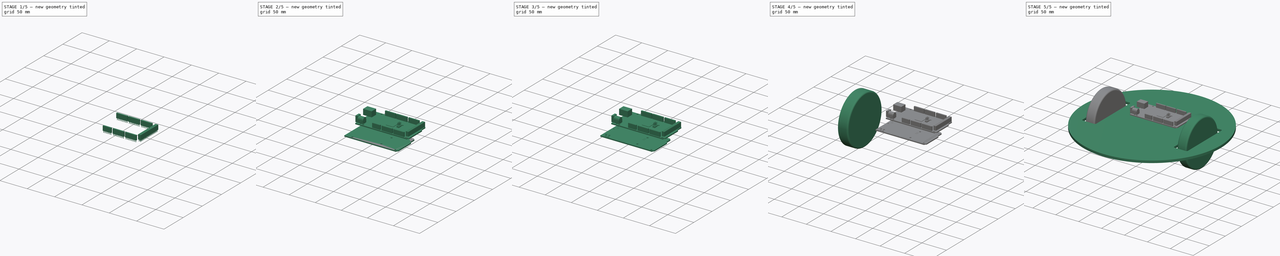
[diagram: build sequence overview — one tinted view per stage of 5, left to right]
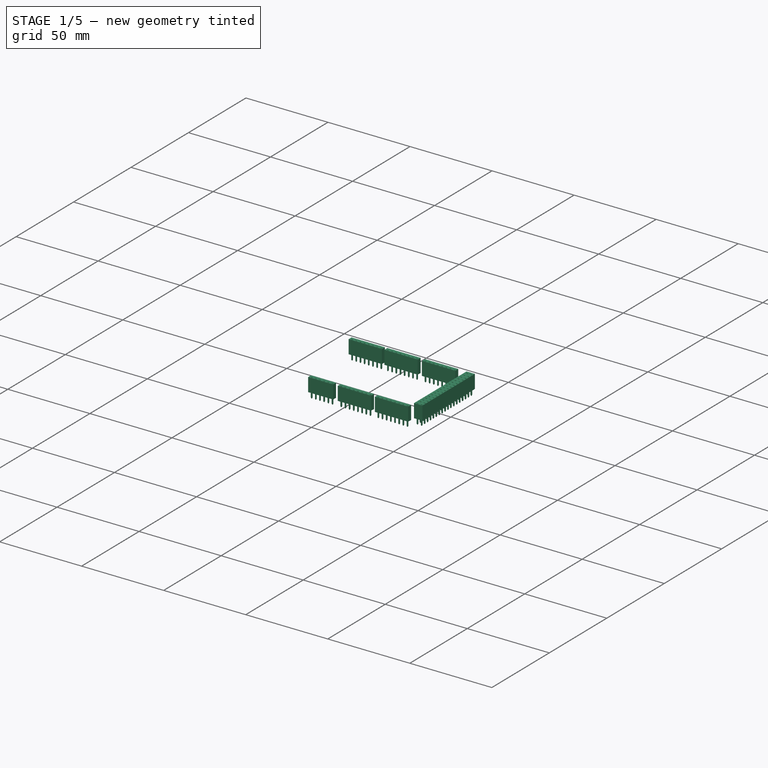
[diagram: stage 1 of 5 — iso view after this stage's code; geometry added in this stage tinted green]
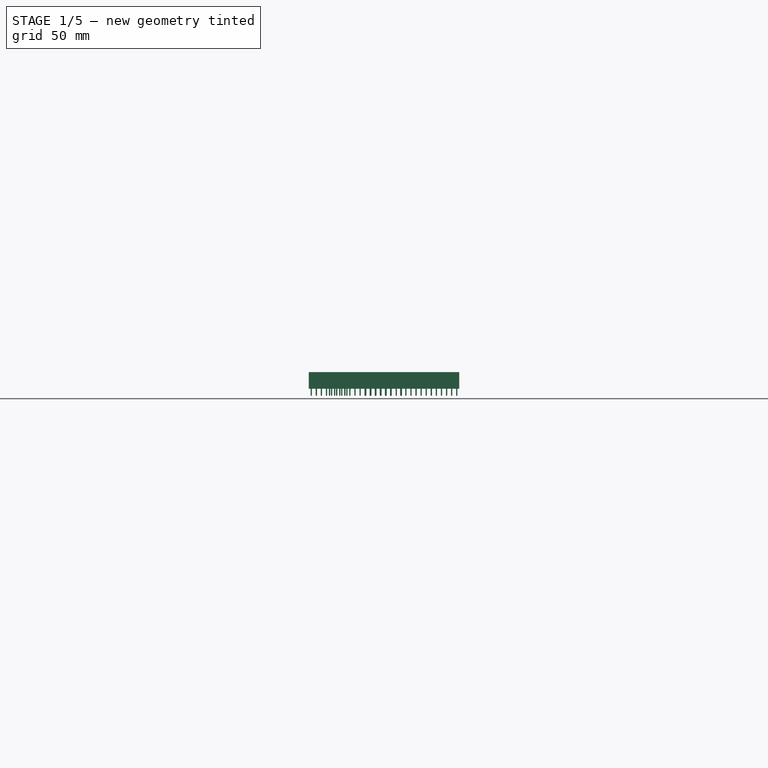
[diagram: stage 1 of 5 — front view after this stage's code; geometry added in this stage tinted green]
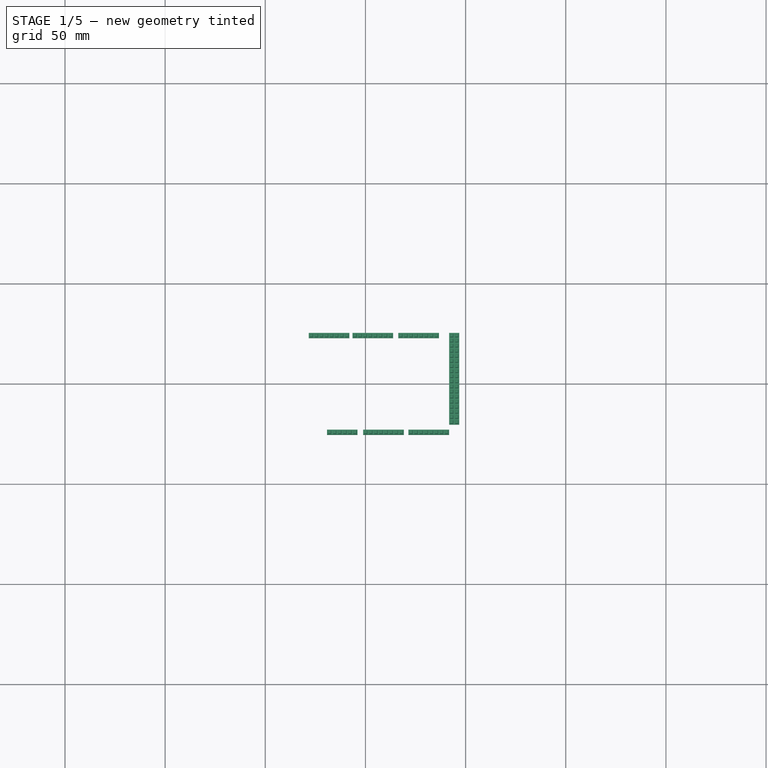
[diagram: stage 1 of 5 — top view after this stage's code; geometry added in this stage tinted green]
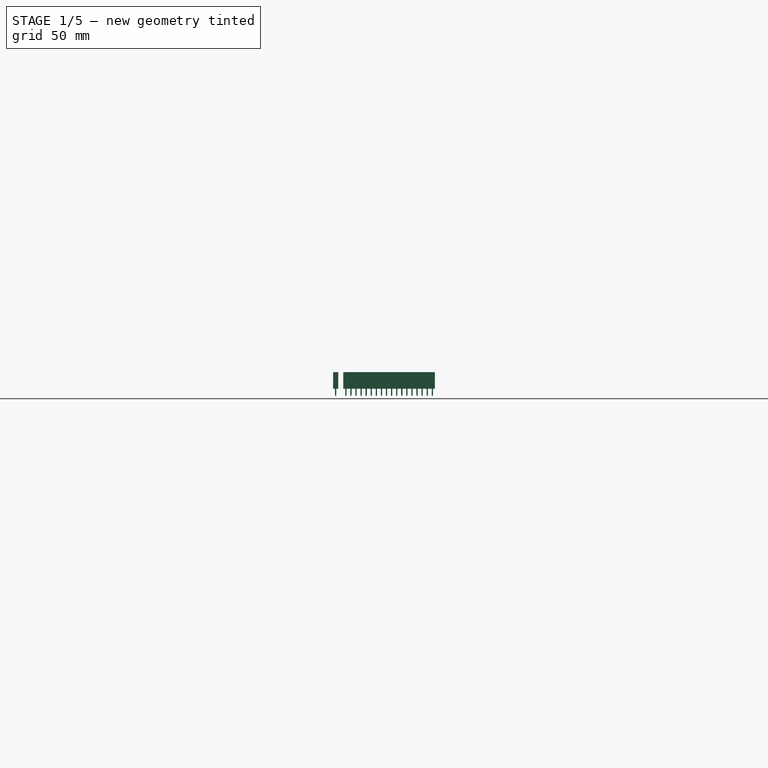
[diagram: stage 1 of 5 — right view after this stage's code; geometry added in this stage tinted green]
FCSTD DOCUMENT  (FreeCAD 0.15R4527 (Git))
Label: piero
License: All rights reserved
LicenseURL: http://en.wikipedia.org/wiki/All_rights_reserved
objects: Sketcher::SketchObject×17, PartDesign::Pocket×12, Part::Compound×10, App::DocumentObjectGroup×6, Part::Feature×6, PartDesign::Pad×5, PartDesign::Fillet×5, PartDesign::LinearPattern×1
note: 73 computed .brp shape members not serialized (recipe doc carries the construction recipe); baked Part::Feature solids carry a one-line shape summary decoded from their .brp

FEATURE [Part::Compound] Compound002  label="1x8-female-pin-header-1"
  Placement = pos=(0.136,-24.176,2) rot=(0,0,1;0rad)
FEATURE [Part::Compound] Compound003  label="1x8-female-pin-header-002"
  Placement = pos=(22.724,-24.176,2) rot=(0,0,1;0rad)
FEATURE [Part::Compound] Compound004  label="1x8-female-pin-header-003"
  Placement = pos=(-27.06,24.084,2) rot=(0,0,1;0rad)
FEATURE [Part::Compound] Compound005  label="1x8-female-pin-header-004"
  Placement = pos=(-5.216,24.084,2) rot=(0,0,1;0rad)
FEATURE [Part::Compound] Compound006  label="1x8-female-pin-header-005"
  Placement = pos=(17.644,24.084,2) rot=(0,0,1;0rad)
FEATURE [Part::Compound] Compound007  label="1x6-female-pin-header"
  Placement = pos=(-17.916,-24.176,2) rot=(0,0,1;0rad)
FEATURE [Part::Compound] Compound008  label="2x18-female-pin-header"
  Placement = pos=(45.584,-19.096,2) rot=(0,0,1;1.5708rad)
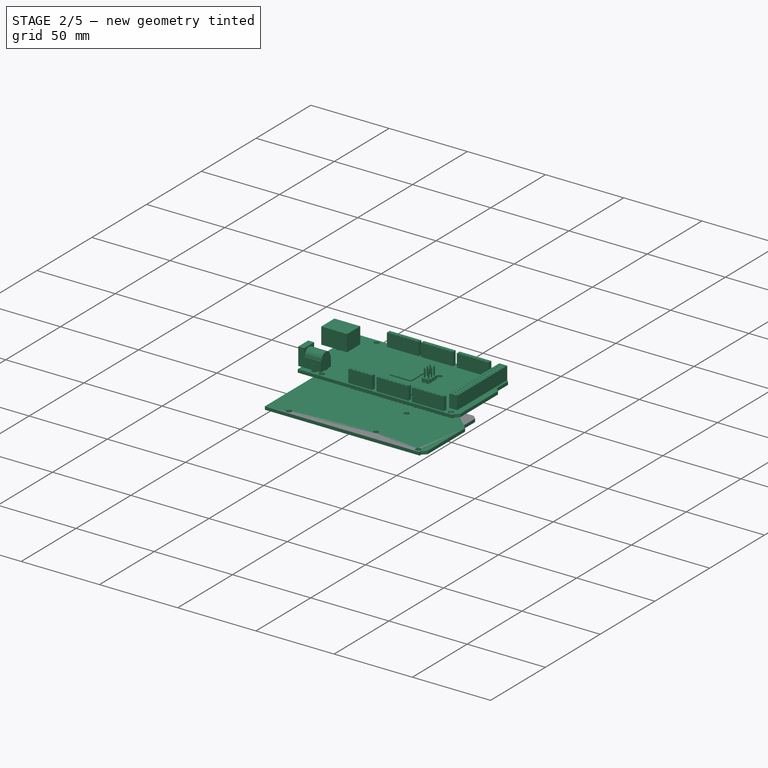
[diagram: stage 2 of 5 — iso view after this stage's code; geometry added in this stage tinted green]
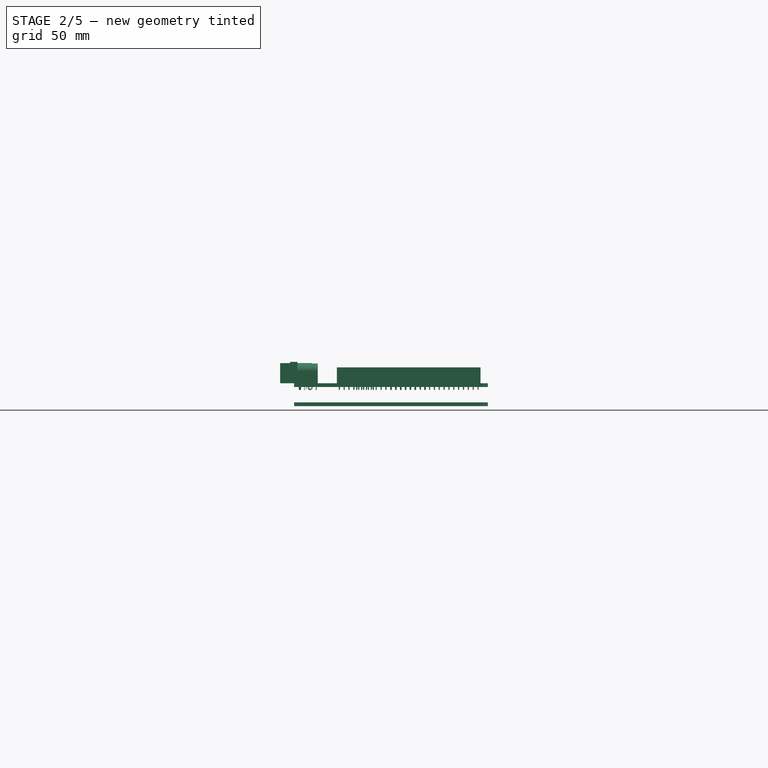
[diagram: stage 2 of 5 — front view after this stage's code; geometry added in this stage tinted green]
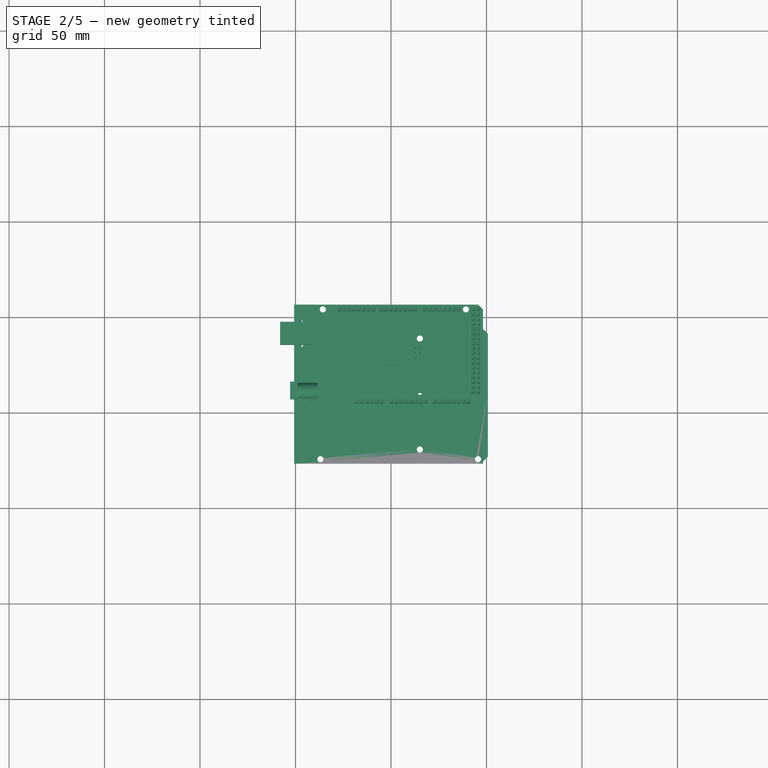
[diagram: stage 2 of 5 — top view after this stage's code; geometry added in this stage tinted green]
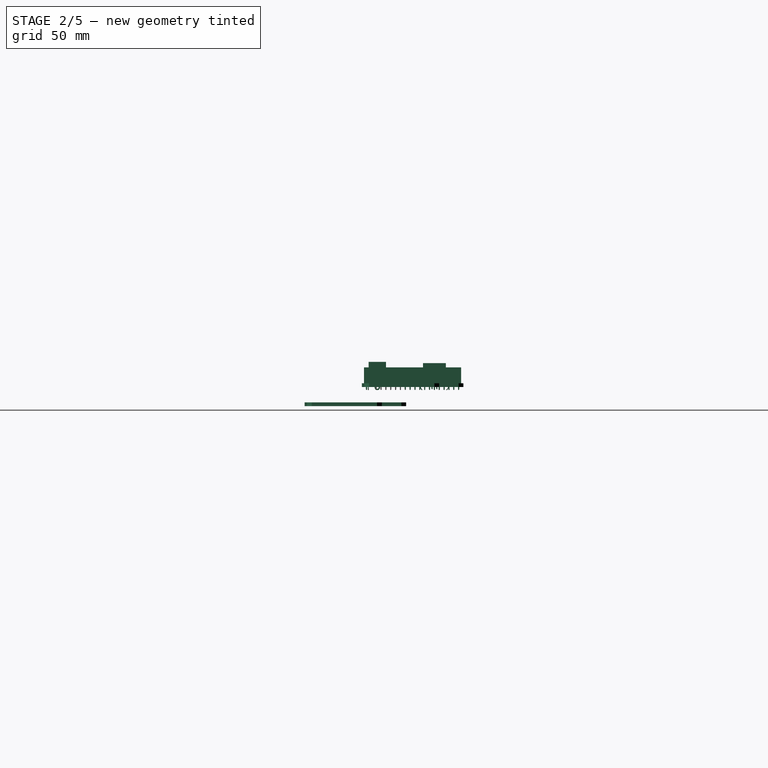
[diagram: stage 2 of 5 — right view after this stage's code; geometry added in this stage tinted green]
FEATURE [App::DocumentObjectGroup] Group  label="LowerPlatform"
  Group = -> [Pocket,Pad,Fillet]
FEATURE [App::DocumentObjectGroup] Group001  label="LeftWheel"
  Group = -> [Pad001,Fillet001,Fillet002]
FEATURE [App::DocumentObjectGroup] Group002  label="RightWheel"
  Group = -> [Pad002,Fillet003,Fillet004]
FEATURE [Sketcher::SketchObject] Sketch004  label="mega-pcb-base-sketch"
  sketch-geometry (11):
    g0: LineSegment StartX=-50.7275 StartY=-26.5825 StartZ=0 EndX=-50.7275 EndY=26.5825 EndZ=0
    g1: LineSegment StartX=-50.7275 StartY=26.5825 StartZ=0 EndX=45.6905 EndY=26.5825 EndZ=0
    g2: LineSegment StartX=45.6905 StartY=26.5825 StartZ=0 EndX=48.1905 EndY=24.0825 EndZ=0
    g3: LineSegment StartX=48.1905 StartY=24.0825 StartZ=0 EndX=48.1905 EndY=13.8825 EndZ=0
    g4: LineSegment StartX=48.1905 StartY=13.8825 StartZ=0 EndX=50.7275 EndY=11.3455 EndZ=0
    g5: LineSegment StartX=50.7275 StartY=11.3455 StartZ=0 EndX=50.7275 EndY=-22.8245 EndZ=0
    g6: LineSegment StartX=50.7275 StartY=-22.8245 StartZ=0 EndX=48.1905 EndY=-25.3225 EndZ=0
    g7: LineSegment StartX=48.1905 StartY=-25.3225 StartZ=0 EndX=48.1905 EndY=-26.5825 EndZ=0
    g8: LineSegment StartX=48.1905 StartY=-26.5825 StartZ=0 EndX=-50.7275 EndY=-26.5825 EndZ=0
    g9: LineSegment [constr] StartX=-50.7275 StartY=0 StartZ=0 EndX=50.7275 EndY=0 EndZ=0
    g10: LineSegment [constr] StartX=45.6905 StartY=26.5825 StartZ=0 EndX=49.6905 EndY=26.5825 EndZ=0
  constraints (34):
    c: Vertical(g0)
    c: Coincident(g0,g1)
    c: Horizontal(g1)
    c: Coincident(g1,g2)
    c: Coincident(g2,g3)
    c: Coincident(g3,g4)
    c: Coincident(g4,g5)
    c: Vertical(g5)
    c: Coincident(g5,g6)
    c: Coincident(g6,g7)
    c: Coincident(g7,g8)
    c: Coincident(g8,g0)
    c: Horizontal(g8)
    c: Vertical(g3)
    c: Vertical(g7)
    c: Symmetric(g0,g0,g-1)
    c: Horizontal(g9)
    c: PointOnObject(g9,g-1)
    c: PointOnObject(g9,g0)
    c: PointOnObject(g9,g5)
    c: Symmetric(g9,g9,g-2)
    c: DistanceX(g0,g2) = 98.918
    c: DistanceY(g0) = 53.165
    c: DistanceX(g9) = 101.455
    c: PointOnObject(g6,g3)
    c: DistanceY(g5) = -34.17
    c: DistanceY(g7) = -1.26
    c: DistanceY(g3) = -10.2
    c: Horizontal(g10)
    c: Coincident(g10,g1)
    c: DistanceX(g10) = 4
    c: Angle(g2,g10) = 0.785398
    c: DistanceX(g1,g2) = 2.5
    c: Parallel(g4,g2)
FEATURE [PartDesign::Pad] Pad003  label="mega-pcb-base"
  Length = 2
  Length2 = 100
  Sketch = -> Sketch004
  Type = 0
FEATURE [Sketcher::SketchObject] Sketch005  label="drills-sketch"
  Placement = pos=(0,0,2) rot=(0,0,1;0rad)
  Support = -> Pad003 [Face11]
  sketch-geometry (7):
    g0: Circle CenterX=-35.6964 CenterY=24.084 CenterZ=0 NormalX=0 NormalY=0 NormalZ=1 Radius=1.6
    g1: LineSegment [constr] StartX=-35.6964 StartY=24.084 StartZ=0 EndX=39.234 EndY=24.084 EndZ=0
    g2: Circle CenterX=39.234 CenterY=24.084 CenterZ=0 NormalX=0 NormalY=0 NormalZ=1 Radius=1.6
    g3: Circle CenterX=-36.966 CenterY=-24.176 CenterZ=0 NormalX=0 NormalY=0 NormalZ=1 Radius=1.6
    g4: Circle CenterX=15.1 CenterY=-19.1 CenterZ=0 NormalX=0 NormalY=0 NormalZ=1 Radius=1.6
    g5: Circle CenterX=15.1 CenterY=8.844 CenterZ=0 NormalX=0 NormalY=0 NormalZ=1 Radius=1.6
    g6: Circle CenterX=45.58 CenterY=-24.18 CenterZ=0 NormalX=0 NormalY=0 NormalZ=1 Radius=1.6
  constraints (20):
    c: Radius(g0) = 1.6
    c: DistanceX(g-1,g0) = -35.6964
    c: DistanceY(g-1,g0) = 24.084
    c: Horizontal(g1)
    c: Coincident(g1,g0)
    c: Coincident(g2,g1)
    c: Equal(g2,g0)
    c: DistanceX(g-1,g1) = 39.234
    c: Equal(g0,g5)
    c: Equal(g5,g4)
    c: Equal(g4,g6)
    c: Equal(g6,g3)
    c: DistanceX(g-1,g3) = -36.966
    c: DistanceY(g-1,g3) = -24.176
    c: DistanceY(g-1,g5) = 8.844
    c: DistanceX(g-1,g5) = 15.1
    c: DistanceX(g-1,g4) = 15.1
    c: DistanceY(g-1,g4) = -19.1
    c: DistanceX(g-1,g6) = 45.58
    c: DistanceY(g-1,g6) = -24.18
FEATURE [PartDesign::Pocket] Pocket001  label="drills"
  Length = 5
  Sketch = -> Sketch005
  Type = 1
FEATURE [App::DocumentObjectGroup] Group003  label="PCB-src"
  Group = -> [Pad003,Pocket001,Pocket002,Pocket003,Pocket004,Pocket005,Pocket006,Pocket007,Pocket008,Pocket009,Pocket010,Pocket011,LinearPattern]
FEATURE [Part::Feature] LinearPattern001  label="Arduino-mega-pcb"
  shape: bbox 101.5 x 53.17 x 2 mm, 114 faces (baked)
FEATURE [Part::Feature] Fusion  label="jack_DC_2.1mm_PCB-final"
  Placement = pos=(-52.85,-18.51,2) rot=(0.57735,-0.57735,-0.57735;2.0944rad)
  shape: bbox 14.48 x 9.472 x 14.78 mm, 34 faces (baked)
FEATURE [Part::Compound] Compound  label="USB-2.0-type-B-jack-PCB"
  Placement = pos=(-49.82,11.39,7.25) rot=(0.57735,-0.57735,-0.57735;2.0944rad)
FEATURE [Sketcher::SketchObject] Sketch016  label="mega-chip-sketch"
  sketch-geometry (8):
    g0: LineSegment StartX=-6.5 StartY=7 StartZ=0 EndX=6.5 EndY=7 EndZ=0
    g1: LineSegment StartX=7 StartY=6.5 StartZ=0 EndX=7 EndY=-6.5 EndZ=0
    g2: LineSegment StartX=6.5 StartY=-7 StartZ=0 EndX=-6.5 EndY=-7 EndZ=0
    g3: LineSegment StartX=-7 StartY=-6.5 StartZ=0 EndX=-7 EndY=6.5 EndZ=0
    g4: ArcOfCircle CenterX=-6.5 CenterY=6.5 CenterZ=0 NormalX=0 NormalY=0 NormalZ=1 Radius=0.5 StartAngle=1.5708 EndAngle=3.14159
    g5: ArcOfCircle CenterX=6.5 CenterY=6.5 CenterZ=0 NormalX=0 NormalY=0 NormalZ=1 Radius=0.5 StartAngle=0 EndAngle=1.5708
    g6: ArcOfCircle CenterX=6.5 CenterY=-6.5 CenterZ=0 NormalX=0 NormalY=0 NormalZ=1 Radius=0.5 StartAngle=4.71239 EndAngle=6.28319
    g7: ArcOfCircle CenterX=-6.5 CenterY=-6.5 CenterZ=0 NormalX=0 NormalY=0 NormalZ=1 Radius=0.5 StartAngle=3.14159 EndAngle=4.71239
  constraints (19):
    c: Horizontal(g0)
    c: Horizontal(g2)
    c: Vertical(g1)
    c: Vertical(g3)
    c: Tangent(g0,g4)
    c: Tangent(g3,g4)
    c: Tangent(g0,g5)
    c: Tangent(g1,g5)
    c: Tangent(g1,g6)
    c: Tangent(g2,g6)
    c: Tangent(g2,g7)
    c: Tangent(g3,g7)
    c: Radius(g4) = 0.5
    c: Equal(g4,g5)
    c: Equal(g5,g6)
    c: Equal(g6,g7)
    c: Symmetric(g4,g6,g-1)
    c: Equal(g0,g3)
    c: DistanceX(g3,g1) = 14
FEATURE [PartDesign::Pad] Pad004  label="mega-chip"
  Length = 0.7
  Length2 = 100
  Sketch = -> Sketch016
  Type = 0
FEATURE [App::DocumentObjectGroup] Group004  label="mega-chip-src"
  Group = -> [Pad004]
FEATURE [Part::Feature] Pad005  label="mega-chip001"
  Placement = pos=(-0.1505,1.7065,2) rot=(0,0,1;0rad)
  shape: bbox 14 x 14 x 0.7 mm, 10 faces (baked)
FEATURE [Part::Feature] Fusion001  label="2x1-male-pin-header-1"
  Placement = pos=(13.9501,3.78,2) rot=(0,0,1;0rad)
  shape: bbox 4.88 x 2.54 x 11.2 mm, 66 faces (baked)
FEATURE [Part::Feature] Fusion002  label="2x1-male-pin-header-2"
  Placement = pos=(13.9501,1.24,2) rot=(0,0,1;0rad)
  shape: bbox 4.88 x 2.54 x 11.2 mm, 66 faces (baked)
FEATURE [Part::Feature] Fusion003  label="2x1-male-pin-header-003"
  Placement = pos=(13.9501,-1.3,2) rot=(0,0,1;0rad)
  shape: bbox 4.88 x 2.54 x 11.2 mm, 66 faces (baked)
FEATURE [Part::Compound] Compound001  label="2x3-male-pin-header"
  Links = -> [Fusion001,Fusion002,Fusion003]
FEATURE [Part::Compound] Compound009  label="Arduino-mega"
  Links = -> [LinearPattern001,Fusion,Compound,Pad005,Compound001,Compound002,Compound003,Compound004,Compound005,Compound006,Compound007,Compound008]
  Placement = pos=(0,30,10) rot=(0,0,1;0rad)
FEATURE [App::DocumentObjectGroup] Group005  label="Mega2560"
  Group = -> [Group003,Group004,Compound009]
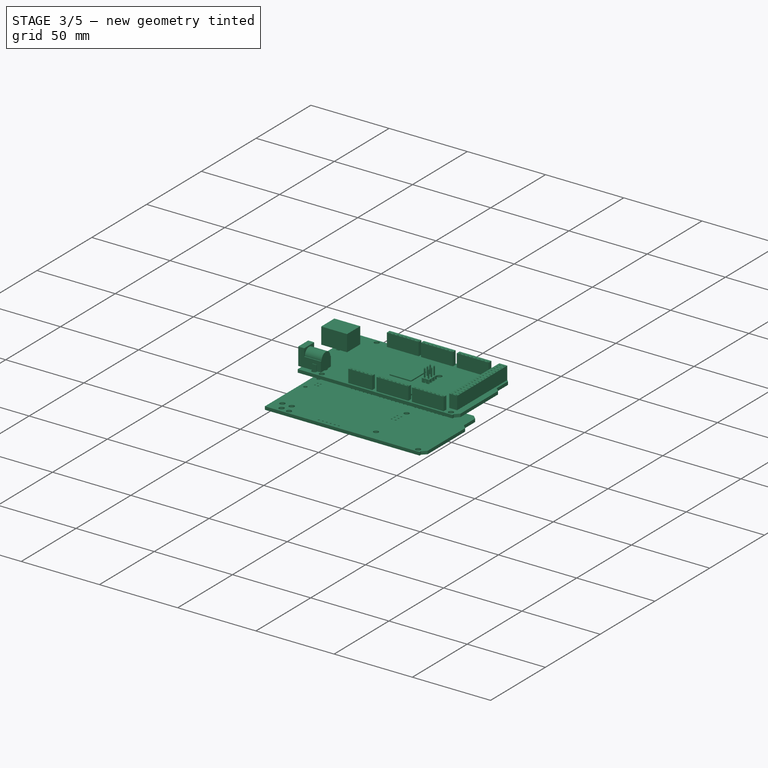
[diagram: stage 3 of 5 — iso view after this stage's code; geometry added in this stage tinted green]
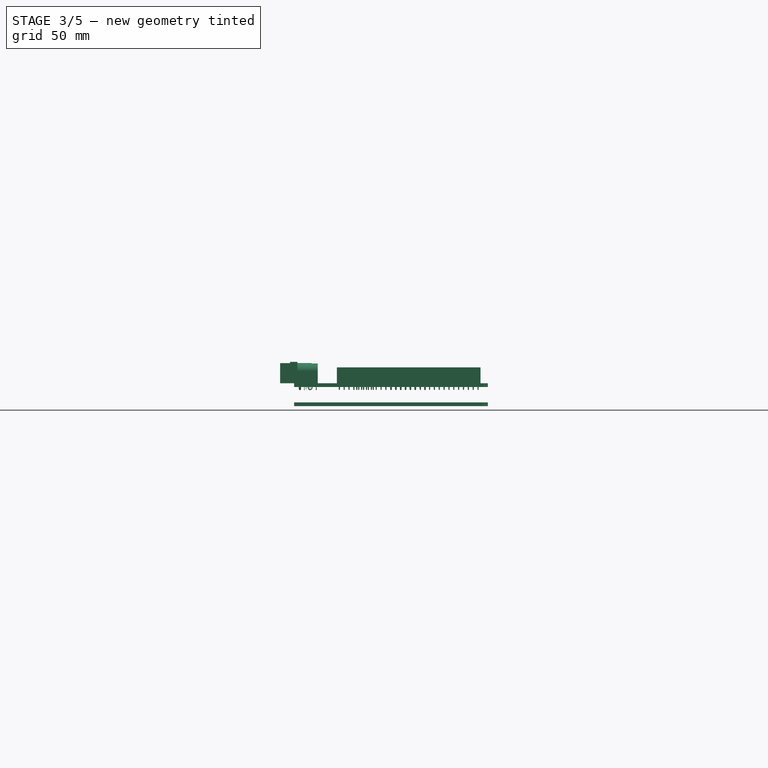
[diagram: stage 3 of 5 — front view after this stage's code; geometry added in this stage tinted green]
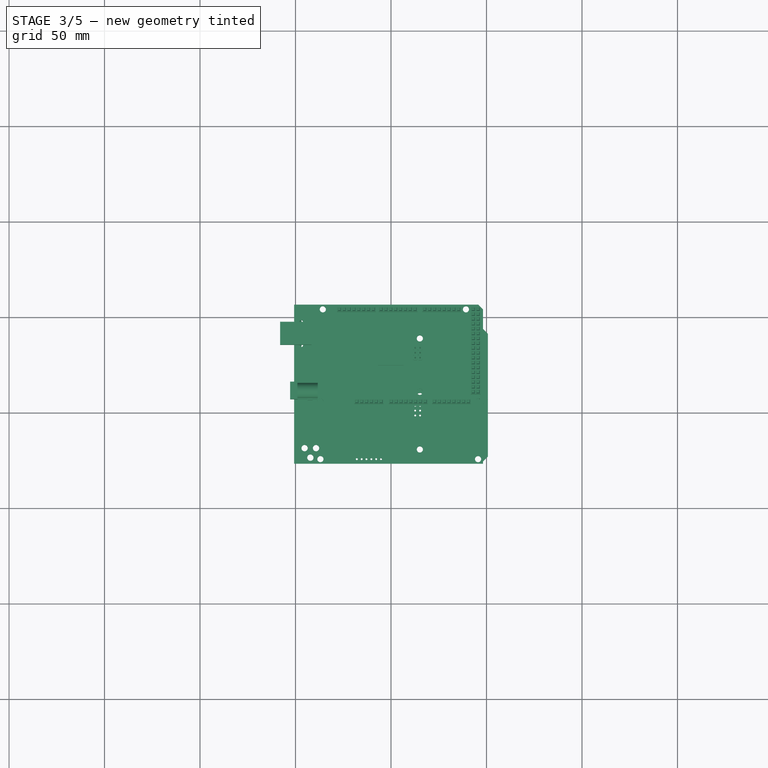
[diagram: stage 3 of 5 — top view after this stage's code; geometry added in this stage tinted green]
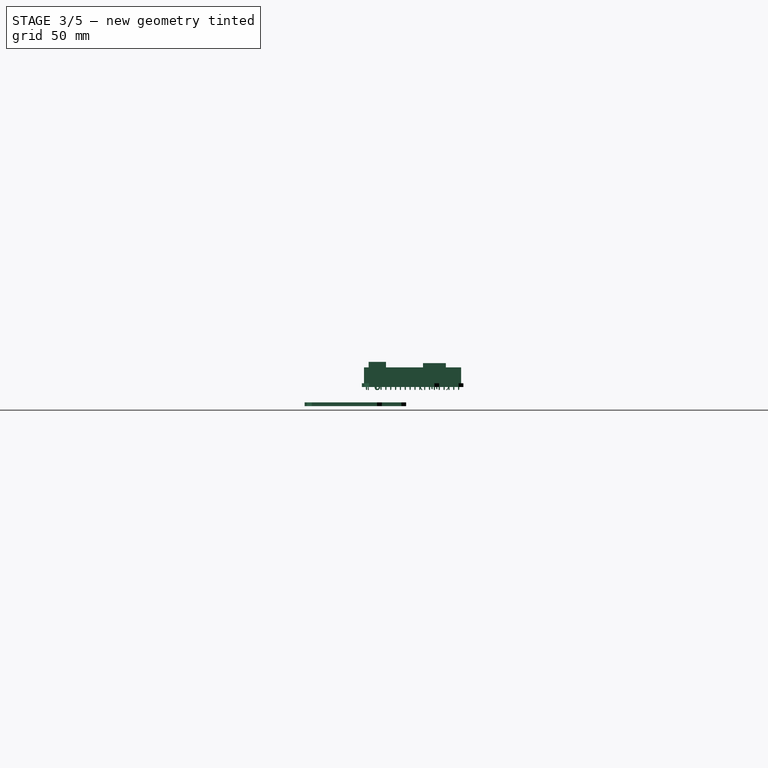
[diagram: stage 3 of 5 — right view after this stage's code; geometry added in this stage tinted green]
FEATURE [Sketcher::SketchObject] Sketch006  label="power-pads-sketch"
  Placement = pos=(0,0,2) rot=(0,0,1;0rad)
  Support = -> Pocket001 [Face5]
  sketch-geometry (4):
    g0: Circle CenterX=-45.25 CenterY=-18.41 CenterZ=0 NormalX=0 NormalY=0 NormalZ=1 Radius=1.65
    g1: Circle CenterX=-39.25 CenterY=-18.41 CenterZ=0 NormalX=0 NormalY=0 NormalZ=1 Radius=1.65
    g2: Circle CenterX=-42.2434 CenterY=-23.3867 CenterZ=0 NormalX=0 NormalY=0 NormalZ=1 Radius=1.65
    g3: LineSegment [constr] StartX=-45.25 StartY=-18.41 StartZ=0 EndX=-39.25 EndY=-18.41 EndZ=0
  constraints (9):
    c: Horizontal(g3)
    c: DistanceX(g-1,g3) = -39.25
    c: DistanceY(g-1,g3) = -18.41
    c: DistanceX(g3) = 6
    c: Coincident(g0,g3)
    c: Coincident(g1,g3)
    c: Equal(g0,g1)
    c: Equal(g1,g2)
    c: Radius(g0) = 1.65
FEATURE [PartDesign::Pocket] Pocket002  label="power-pads"
  Length = 5
  Sketch = -> Sketch006
  Type = 1
FEATURE [Sketcher::SketchObject] Sketch007  label="usb-pads-sketch"
  Placement = pos=(0,0,2) rot=(0,0,1;0rad)
  Support = -> Pocket002 [Face5]
  sketch-geometry (11):
    g0: Circle CenterX=-47.13 CenterY=17.38 CenterZ=0 NormalX=0 NormalY=0 NormalZ=1 Radius=1.1
    g1: Circle CenterX=-47.13 CenterY=5.38 CenterZ=0 NormalX=0 NormalY=0 NormalZ=1 Radius=1.1
    g2: Circle CenterX=-44.42 CenterY=12.64 CenterZ=0 NormalX=0 NormalY=0 NormalZ=1 Radius=0.475
    g3: Circle CenterX=-42.42 CenterY=12.64 CenterZ=0 NormalX=0 NormalY=0 NormalZ=1 Radius=0.475
    g4: Circle CenterX=-44.42 CenterY=10.14 CenterZ=0 NormalX=0 NormalY=0 NormalZ=1 Radius=0.475
    g5: Circle CenterX=-42.42 CenterY=10.14 CenterZ=0 NormalX=0 NormalY=0 NormalZ=1 Radius=0.475
    g6: LineSegment [constr] StartX=-47.13 StartY=17.38 StartZ=0 EndX=-47.13 EndY=5.38 EndZ=0
    g7: LineSegment [constr] StartX=-44.42 StartY=10.14 StartZ=0 EndX=-42.42 EndY=10.14 EndZ=0
    g8: LineSegment [constr] StartX=-42.42 StartY=12.64 StartZ=0 EndX=-42.42 EndY=10.14 EndZ=0
    g9: LineSegment [constr] StartX=-44.42 StartY=12.64 StartZ=0 EndX=-42.42 EndY=12.64 EndZ=0
    g10: LineSegment [constr] StartX=-44.42 StartY=12.64 StartZ=0 EndX=-44.42 EndY=10.14 EndZ=0
  constraints (28):
    c: DistanceY(g-1,g1) = 5.38
    c: DistanceX(g-1,g1) = -47.13
    c: Radius(g1) = 1.1
    c: Equal(g1,g0)
    c: Vertical(g6)
    c: Coincident(g6,g0)
    c: Coincident(g6,g1)
    c: DistanceY(g6) = -12
    c: Equal(g2,g3)
    c: Equal(g3,g4)
    c: Equal(g4,g5)
    c: DistanceX(g-1,g5) = -42.42
    c: Horizontal(g7)
    c: Coincident(g7,g5)
    c: Coincident(g7,g4)
    c: DistanceY(g-1,g5) = 10.14
    c: Radius(g2) = 0.475
    c: DistanceX(g7) = 2
    c: Vertical(g8)
    c: Coincident(g8,g5)
    c: Coincident(g8,g3)
    c: DistanceY(g8) = -2.5
    c: Horizontal(g9)
    c: Coincident(g9,g2)
    c: Coincident(g9,g3)
    c: Vertical(g10)
    c: Coincident(g10,g2)
    c: Coincident(g10,g4)
FEATURE [PartDesign::Pocket] Pocket003  label="usb-pads"
  Length = 5
  Sketch = -> Sketch007
  Type = 1
FEATURE [Sketcher::SketchObject] Sketch008  label="male-pins-connectors-sketch"
  Placement = pos=(0,0,2) rot=(0,0,1;0rad)
  Support = -> Pocket003 [Face5]
  sketch-geometry (13):
    g0: Circle CenterX=12.6801 CenterY=-1.3 CenterZ=0 NormalX=0 NormalY=0 NormalZ=1 Radius=0.5
    g1: Circle CenterX=15.2201 CenterY=-1.3 CenterZ=0 NormalX=0 NormalY=0 NormalZ=1 Radius=0.5
    g2: Circle CenterX=15.2201 CenterY=1.24 CenterZ=0 NormalX=0 NormalY=0 NormalZ=1 Radius=0.5
    g3: Circle CenterX=12.6801 CenterY=1.24 CenterZ=0 NormalX=0 NormalY=0 NormalZ=1 Radius=0.5
    g4: LineSegment [constr] StartX=12.6801 StartY=1.24 StartZ=0 EndX=15.2201 EndY=1.24 EndZ=0
    g5: LineSegment [constr] StartX=15.2201 StartY=1.24 StartZ=0 EndX=15.2201 EndY=-1.3 EndZ=0
    g6: LineSegment [constr] StartX=15.2201 StartY=-1.3 StartZ=0 EndX=12.6801 EndY=-1.3 EndZ=0
    g7: LineSegment [constr] StartX=12.6801 StartY=-1.3 StartZ=0 EndX=12.6801 EndY=1.24 EndZ=0
    g8: Circle CenterX=12.6801 CenterY=3.78 CenterZ=0 NormalX=0 NormalY=0 NormalZ=1 Radius=0.5
    g9: Circle CenterX=15.2201 CenterY=3.78 CenterZ=0 NormalX=0 NormalY=0 NormalZ=1 Radius=0.5
    g10: LineSegment [constr] StartX=12.6801 StartY=1.24 StartZ=0 EndX=12.6801 EndY=3.78 EndZ=0
    g11: LineSegment [constr] StartX=12.6801 StartY=3.78 StartZ=0 EndX=15.2201 EndY=3.78 EndZ=0
    g12: LineSegment [constr] StartX=15.2201 StartY=3.78 StartZ=0 EndX=15.2201 EndY=1.24 EndZ=0
  constraints (33):
    c: Radius(g0) = 0.5
    c: DistanceX(g-1,g0) = 12.6801
    c: DistanceY(g-1,g0) = -1.3
    c: Coincident(g4,g5)
    c: Coincident(g5,g6)
    c: Coincident(g6,g7)
    c: Coincident(g7,g4)
    c: Horizontal(g4)
    c: Horizontal(g6)
    c: Vertical(g5)
    c: Coincident(g4,g3)
    c: Coincident(g4,g2)
    c: Coincident(g6,g0)
    c: Coincident(g5,g1)
    c: Equal(g3,g2)
    c: Equal(g2,g1)
    c: Equal(g1,g0)
    c: DistanceY(g5) = -2.54
    c: Equal(g5,g6)
    c: Equal(g6,g4)
    c: Equal(g4,g7)
    c: Equal(g8,g9)
    c: Equal(g9,g2)
    c: Coincident(g10,g11)
    c: Horizontal(g11)
    c: Coincident(g11,g12)
    c: Vertical(g10)
    c: Vertical(g12)
    c: Coincident(g8,g10)
    c: Coincident(g11,g9)
    c: Coincident(g2,g12)
    c: Coincident(g10,g3)
    c: Equal(g12,g4)
FEATURE [PartDesign::Pocket] Pocket004  label="male-pins-pads"
  Length = 5
  Sketch = -> Sketch008
  Type = 1
FEATURE [Sketcher::SketchObject] Sketch009  label="female-headerx8-1-sketch"
  Placement = pos=(0,0,2) rot=(0,0,1;0rad)
  Support = -> Pocket004 [Face5]
  sketch-geometry (15):
    g0: Circle CenterX=-27.06 CenterY=24.084 CenterZ=0 NormalX=0 NormalY=0 NormalZ=1 Radius=0.5
    g1: LineSegment [constr] StartX=-27.06 StartY=24.084 StartZ=0 EndX=-24.52 EndY=24.084 EndZ=0
    g2: Circle CenterX=-24.52 CenterY=24.084 CenterZ=0 NormalX=0 NormalY=0 NormalZ=1 Radius=0.5
    g3: Circle CenterX=-21.98 CenterY=24.084 CenterZ=0 NormalX=0 NormalY=0 NormalZ=1 Radius=0.5
    g4: Circle CenterX=-19.44 CenterY=24.084 CenterZ=0 NormalX=0 NormalY=0 NormalZ=1 Radius=0.5
    g5: Circle CenterX=-16.9 CenterY=24.084 CenterZ=0 NormalX=0 NormalY=0 NormalZ=1 Radius=0.5
    g6: LineSegment [constr] StartX=-24.52 StartY=24.084 StartZ=0 EndX=-21.98 EndY=24.084 EndZ=0
    g7: LineSegment [constr] StartX=-21.98 StartY=24.084 StartZ=0 EndX=-19.44 EndY=24.084 EndZ=0
    g8: LineSegment [constr] StartX=-19.44 StartY=24.084 StartZ=0 EndX=-16.9 EndY=24.084 EndZ=0
    g9: Circle CenterX=-14.36 CenterY=24.084 CenterZ=0 NormalX=0 NormalY=0 NormalZ=1 Radius=0.5
    g10: Circle CenterX=-11.82 CenterY=24.084 CenterZ=0 NormalX=0 NormalY=0 NormalZ=1 Radius=0.5
    g11: Circle CenterX=-9.28 CenterY=24.084 CenterZ=0 NormalX=0 NormalY=0 NormalZ=1 Radius=0.5
    g12: LineSegment [constr] StartX=-16.9 StartY=24.084 StartZ=0 EndX=-14.36 EndY=24.084 EndZ=0
    g13: LineSegment [constr] StartX=-14.36 StartY=24.084 StartZ=0 EndX=-11.82 EndY=24.084 EndZ=0
    g14: LineSegment [constr] StartX=-11.82 StartY=24.084 StartZ=0 EndX=-9.28 EndY=24.084 EndZ=0
  constraints (38):
    c: Radius(g0) = 0.5
    c: Horizontal(g1)
    c: DistanceX(g1) = 2.54
    c: Coincident(g2,g1)
    c: Horizontal(g6)
    c: Horizontal(g7)
    c: Horizontal(g8)
    c: Horizontal(g12)
    c: Horizontal(g13)
    c: Horizontal(g14)
    c: Coincident(g6,g1)
    c: Coincident(g3,g6)
    c: Coincident(g3,g7)
    c: Coincident(g4,g7)
    c: Coincident(g8,g4)
    c: Coincident(g5,g8)
    c: Coincident(g12,g5)
    c: Coincident(g9,g12)
    c: Coincident(g13,g9)
    c: Coincident(g10,g13)
    c: Coincident(g14,g10)
    c: Coincident(g11,g14)
    c: Equal(g0,g2)
    c: Equal(g2,g3)
    c: Equal(g3,g4)
    c: Equal(g4,g5)
    c: Equal(g5,g9)
    c: Equal(g9,g10)
    c: Equal(g10,g11)
    c: Equal(g1,g6)
    c: Equal(g6,g7)
    c: Equal(g7,g8)
    c: Equal(g8,g12)
    c: Equal(g12,g13)
    c: Equal(g13,g14)
    c: Coincident(g0,g1)
    c: DistanceX(g-1,g0) = -27.06
    c: DistanceY(g-1,g0) = 24.084
FEATURE [PartDesign::Pocket] Pocket005  label="female-headerx8-1"
  Length = 5
  Sketch = -> Sketch009
  Type = 1
FEATURE [Sketcher::SketchObject] Sketch010  label="female-headerx8-2-sketch"
  Placement = pos=(0,0,2) rot=(0,0,1;0rad)
  Support = -> Pocket005 [Face5]
  sketch-geometry (15):
    g0: Circle CenterX=-5.216 CenterY=24.084 CenterZ=0 NormalX=0 NormalY=0 NormalZ=1 Radius=0.5
    g1: LineSegment [constr] StartX=-5.216 StartY=24.084 StartZ=0 EndX=-2.676 EndY=24.084 EndZ=0
    g2: Circle CenterX=-2.676 CenterY=24.084 CenterZ=0 NormalX=0 NormalY=0 NormalZ=1 Radius=0.5
    g3: Circle CenterX=-0.136 CenterY=24.084 CenterZ=0 NormalX=0 NormalY=0 NormalZ=1 Radius=0.5
    g4: Circle CenterX=2.404 CenterY=24.084 CenterZ=0 NormalX=0 NormalY=0 NormalZ=1 Radius=0.5
    g5: Circle CenterX=4.944 CenterY=24.084 CenterZ=0 NormalX=0 NormalY=0 NormalZ=1 Radius=0.5
    g6: LineSegment [constr] StartX=-2.676 StartY=24.084 StartZ=0 EndX=-0.136 EndY=24.084 EndZ=0
    g7: LineSegment [constr] StartX=-0.136 StartY=24.084 StartZ=0 EndX=2.404 EndY=24.084 EndZ=0
    g8: LineSegment [constr] StartX=2.404 StartY=24.084 StartZ=0 EndX=4.944 EndY=24.084 EndZ=0
    g9: Circle CenterX=7.484 CenterY=24.084 CenterZ=0 NormalX=0 NormalY=0 NormalZ=1 Radius=0.5
    g10: Circle CenterX=10.024 CenterY=24.084 CenterZ=0 NormalX=0 NormalY=0 NormalZ=1 Radius=0.5
    g11: Circle CenterX=12.564 CenterY=24.084 CenterZ=0 NormalX=0 NormalY=0 NormalZ=1 Radius=0.5
    g12: LineSegment [constr] StartX=4.944 StartY=24.084 StartZ=0 EndX=7.484 EndY=24.084 EndZ=0
    g13: LineSegment [constr] StartX=7.484 StartY=24.084 StartZ=0 EndX=10.024 EndY=24.084 EndZ=0
    g14: LineSegment [constr] StartX=10.024 StartY=24.084 StartZ=0 EndX=12.564 EndY=24.084 EndZ=0
  constraints (38):
    c: Radius(g0) = 0.5
    c: Horizontal(g1)
    c: DistanceX(g1) = 2.54
    c: Coincident(g2,g1)
    c: Horizontal(g6)
    c: Horizontal(g7)
    c: Horizontal(g8)
    c: Horizontal(g12)
    c: Horizontal(g13)
    c: Horizontal(g14)
    c: Coincident(g6,g1)
    c: Coincident(g3,g6)
    c: Coincident(g3,g7)
    c: Coincident(g4,g7)
    c: Coincident(g8,g4)
    c: Coincident(g5,g8)
    c: Coincident(g12,g5)
    c: Coincident(g9,g12)
    c: Coincident(g13,g9)
    c: Coincident(g10,g13)
    c: Coincident(g14,g10)
    c: Coincident(g11,g14)
    c: Equal(g0,g2)
    c: Equal(g2,g3)
    c: Equal(g3,g4)
    c: Equal(g4,g5)
    c: Equal(g5,g9)
    c: Equal(g9,g10)
    c: Equal(g10,g11)
    c: Equal(g1,g6)
    c: Equal(g6,g7)
    c: Equal(g7,g8)
    c: Equal(g8,g12)
    c: Equal(g12,g13)
    c: Equal(g13,g14)
    c: Coincident(g0,g1)
    c: DistanceX(g-1,g0) = -5.216
    c: DistanceY(g-1,g0) = 24.084
FEATURE [PartDesign::Pocket] Pocket006  label="female-headerx8-2"
  Length = 5
  Sketch = -> Sketch010
  Type = 1
FEATURE [Sketcher::SketchObject] Sketch011  label="female-headerx8-3-sketch"
  Placement = pos=(0,0,2) rot=(0,0,1;0rad)
  Support = -> Pocket006 [Face5]
  sketch-geometry (15):
    g0: Circle CenterX=17.644 CenterY=24.084 CenterZ=0 NormalX=0 NormalY=0 NormalZ=1 Radius=0.5
    g1: LineSegment [constr] StartX=17.644 StartY=24.084 StartZ=0 EndX=20.184 EndY=24.084 EndZ=0
    g2: Circle CenterX=20.184 CenterY=24.084 CenterZ=0 NormalX=0 NormalY=0 NormalZ=1 Radius=0.5
    g3: Circle CenterX=22.724 CenterY=24.084 CenterZ=0 NormalX=0 NormalY=0 NormalZ=1 Radius=0.5
    g4: Circle CenterX=25.264 CenterY=24.084 CenterZ=0 NormalX=0 NormalY=0 NormalZ=1 Radius=0.5
    g5: Circle CenterX=27.804 CenterY=24.084 CenterZ=0 NormalX=0 NormalY=0 NormalZ=1 Radius=0.5
    g6: LineSegment [constr] StartX=20.184 StartY=24.084 StartZ=0 EndX=22.724 EndY=24.084 EndZ=0
    g7: LineSegment [constr] StartX=22.724 StartY=24.084 StartZ=0 EndX=25.264 EndY=24.084 EndZ=0
    g8: LineSegment [constr] StartX=25.264 StartY=24.084 StartZ=0 EndX=27.804 EndY=24.084 EndZ=0
    g9: Circle CenterX=30.344 CenterY=24.084 CenterZ=0 NormalX=0 NormalY=0 NormalZ=1 Radius=0.5
    g10: Circle CenterX=32.884 CenterY=24.084 CenterZ=0 NormalX=0 NormalY=0 NormalZ=1 Radius=0.5
    g11: Circle CenterX=35.424 CenterY=24.084 CenterZ=0 NormalX=0 NormalY=0 NormalZ=1 Radius=0.5
    g12: LineSegment [constr] StartX=27.804 StartY=24.084 StartZ=0 EndX=30.344 EndY=24.084 EndZ=0
    g13: LineSegment [constr] StartX=30.344 StartY=24.084 StartZ=0 EndX=32.884 EndY=24.084 EndZ=0
    g14: LineSegment [constr] StartX=32.884 StartY=24.084 StartZ=0 EndX=35.424 EndY=24.084 EndZ=0
  constraints (38):
    c: Radius(g0) = 0.5
    c: Horizontal(g1)
    c: DistanceX(g1) = 2.54
    c: Coincident(g2,g1)
    c: Horizontal(g6)
    c: Horizontal(g7)
    c: Horizontal(g8)
    c: Horizontal(g12)
    c: Horizontal(g13)
    c: Horizontal(g14)
    c: Coincident(g6,g1)
    c: Coincident(g3,g6)
    c: Coincident(g3,g7)
    c: Coincident(g4,g7)
    c: Coincident(g8,g4)
    c: Coincident(g5,g8)
    c: Coincident(g12,g5)
    c: Coincident(g9,g12)
    c: Coincident(g13,g9)
    c: Coincident(g10,g13)
    c: Coincident(g14,g10)
    c: Coincident(g11,g14)
    c: Equal(g0,g2)
    c: Equal(g2,g3)
    c: Equal(g3,g4)
    c: Equal(g4,g5)
    c: Equal(g5,g9)
    c: Equal(g9,g10)
    c: Equal(g10,g11)
    c: Equal(g1,g6)
    c: Equal(g6,g7)
    c: Equal(g7,g8)
    c: Equal(g8,g12)
    c: Equal(g12,g13)
    c: Equal(g13,g14)
    c: Coincident(g0,g1)
    c: DistanceX(g-1,g0) = 17.644
    c: DistanceY(g-1,g0) = 24.084
FEATURE [PartDesign::Pocket] Pocket007  label="female-headerx8-3"
  Length = 5
  Sketch = -> Sketch011
  Type = 1
FEATURE [Sketcher::SketchObject] Sketch012  label="female-headerx8-4-sketch"
  Placement = pos=(0,0,2) rot=(0,0,1;0rad)
  Support = -> Pocket007 [Face5]
  sketch-geometry (11):
    g0: Circle CenterX=-17.916 CenterY=-24.176 CenterZ=0 NormalX=0 NormalY=0 NormalZ=1 Radius=0.5
    g1: LineSegment [constr] StartX=-17.916 StartY=-24.176 StartZ=0 EndX=-15.376 EndY=-24.176 EndZ=0
    g2: Circle CenterX=-15.376 CenterY=-24.176 CenterZ=0 NormalX=0 NormalY=0 NormalZ=1 Radius=0.5
    g3: Circle CenterX=-12.836 CenterY=-24.176 CenterZ=0 NormalX=0 NormalY=0 NormalZ=1 Radius=0.5
    g4: Circle CenterX=-10.296 CenterY=-24.176 CenterZ=0 NormalX=0 NormalY=0 NormalZ=1 Radius=0.5
    g5: Circle CenterX=-7.756 CenterY=-24.176 CenterZ=0 NormalX=0 NormalY=0 NormalZ=1 Radius=0.5
    g6: LineSegment [constr] StartX=-15.376 StartY=-24.176 StartZ=0 EndX=-12.836 EndY=-24.176 EndZ=0
    g7: LineSegment [constr] StartX=-12.836 StartY=-24.176 StartZ=0 EndX=-10.296 EndY=-24.176 EndZ=0
    g8: LineSegment [constr] StartX=-10.296 StartY=-24.176 StartZ=0 EndX=-7.756 EndY=-24.176 EndZ=0
    g9: Circle CenterX=-5.216 CenterY=-24.176 CenterZ=0 NormalX=0 NormalY=0 NormalZ=1 Radius=0.5
    g10: LineSegment [constr] StartX=-7.756 StartY=-24.176 StartZ=0 EndX=-5.216 EndY=-24.176 EndZ=0
  constraints (28):
    c: Radius(g0) = 0.5
    c: Horizontal(g1)
    c: DistanceX(g1) = 2.54
    c: Coincident(g2,g1)
    c: Horizontal(g6)
    c: Horizontal(g7)
    c: Horizontal(g8)
    c: Horizontal(g10)
    c: Coincident(g6,g1)
    c: Coincident(g3,g6)
    c: Coincident(g3,g7)
    c: Coincident(g4,g7)
    c: Coincident(g8,g4)
    c: Coincident(g5,g8)
    c: Coincident(g10,g5)
    c: Coincident(g9,g10)
    c: Equal(g0,g2)
    c: Equal(g2,g3)
    c: Equal(g3,g4)
    c: Equal(g4,g5)
    c: Equal(g5,g9)
    c: Equal(g1,g6)
    c: Equal(g6,g7)
    c: Equal(g7,g8)
    c: Equal(g8,g10)
    c: Coincident(g0,g1)
    c: DistanceX(g-1,g0) = -17.916
    c: DistanceY(g-1,g0) = -24.176
FEATURE [PartDesign::Pocket] Pocket008  label="female-headerx8-4"
  Length = 5
  Sketch = -> Sketch012
  Type = 1
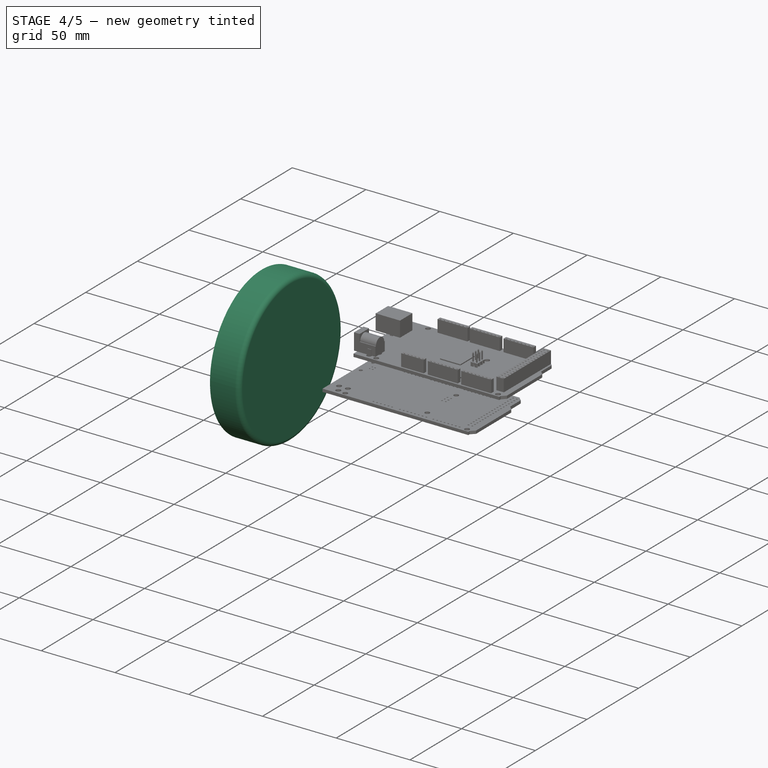
[diagram: stage 4 of 5 — iso view after this stage's code; geometry added in this stage tinted green]
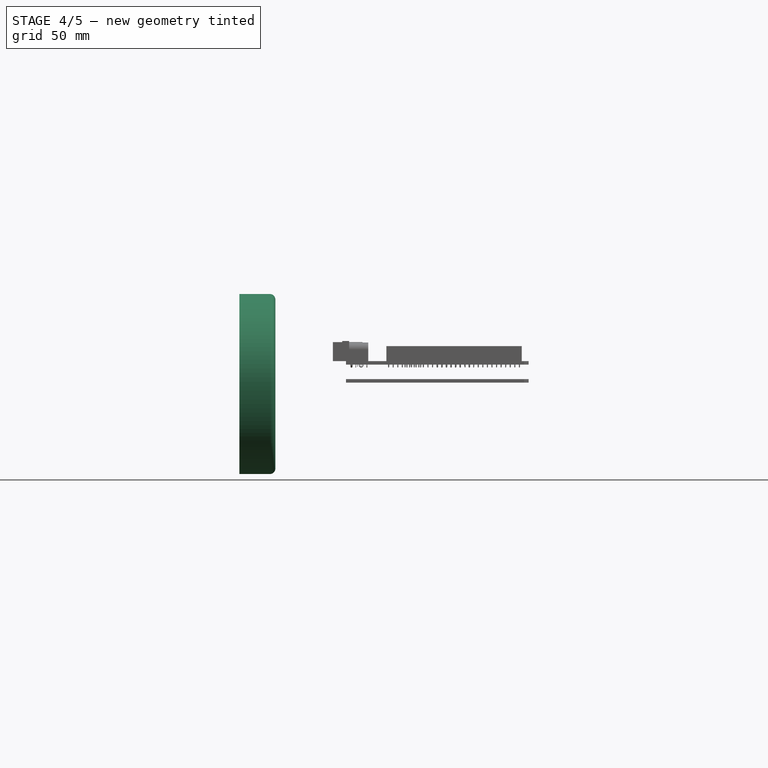
[diagram: stage 4 of 5 — front view after this stage's code; geometry added in this stage tinted green]
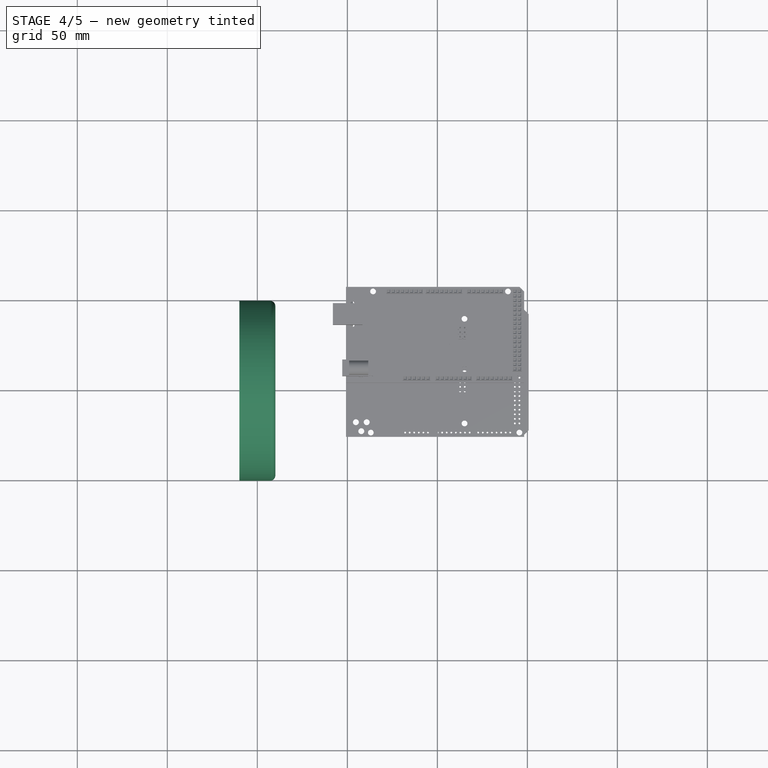
[diagram: stage 4 of 5 — top view after this stage's code; geometry added in this stage tinted green]
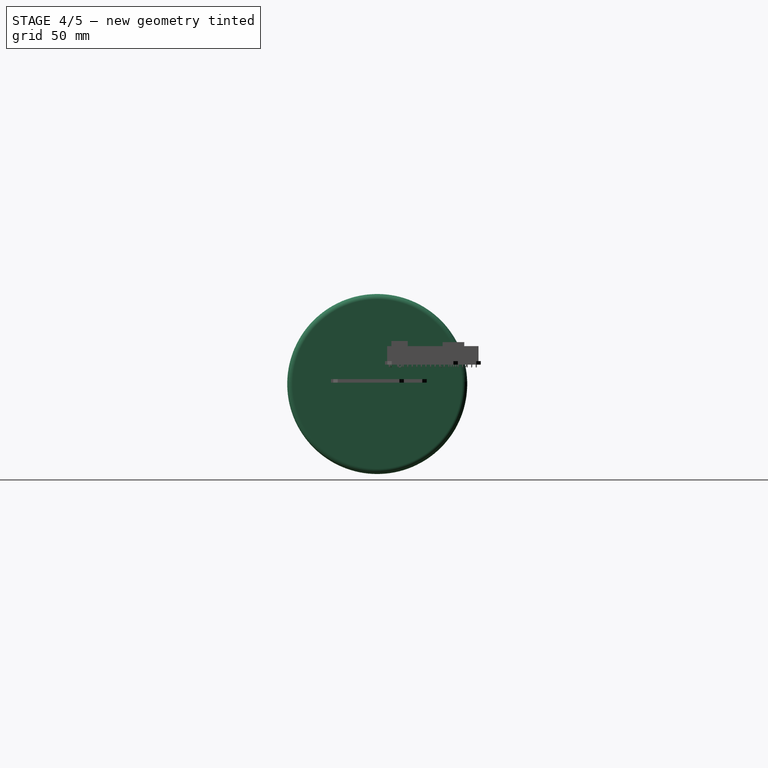
[diagram: stage 4 of 5 — right view after this stage's code; geometry added in this stage tinted green]
FEATURE [Sketcher::SketchObject] Sketch002
  Placement = pos=(-110,0,0) rot=(0,1,0;1.5708rad)
  sketch-geometry (1):
    g0: Circle CenterX=0.73979 CenterY=-0.924742 CenterZ=0 NormalX=0 NormalY=0 NormalZ=1 Radius=50
  constraints (1):
    c: Radius(g0) = 50
FEATURE [PartDesign::Pad] Pad002
  Length = 20
  Length2 = 100
  Placement = pos=(-110,0,0) rot=(0,1,0;1.5708rad)
  Sketch = -> Sketch002
  Type = 0
FEATURE [PartDesign::Fillet] Fillet003
  Base = -> Pad002 [Edge3]
  Placement = pos=(-110,0,0) rot=(0,1,0;1.5708rad)
  Radius = 3
FEATURE [Sketcher::SketchObject] Sketch013  label="female-headerx8-5-sketch"
  Placement = pos=(0,0,2) rot=(0,0,1;0rad)
  Support = -> Pocket008 [Face5]
  sketch-geometry (15):
    g0: Circle CenterX=0.136 CenterY=-24.176 CenterZ=0 NormalX=0 NormalY=0 NormalZ=1 Radius=0.5
    g1: LineSegment [constr] StartX=0.136 StartY=-24.176 StartZ=0 EndX=2.676 EndY=-24.176 EndZ=0
    g2: Circle CenterX=2.676 CenterY=-24.176 CenterZ=0 NormalX=0 NormalY=0 NormalZ=1 Radius=0.5
    g3: Circle CenterX=5.216 CenterY=-24.176 CenterZ=0 NormalX=0 NormalY=0 NormalZ=1 Radius=0.5
    g4: Circle CenterX=7.756 CenterY=-24.176 CenterZ=0 NormalX=0 NormalY=0 NormalZ=1 Radius=0.5
    g5: Circle CenterX=10.296 CenterY=-24.176 CenterZ=0 NormalX=0 NormalY=0 NormalZ=1 Radius=0.5
    g6: LineSegment [constr] StartX=2.676 StartY=-24.176 StartZ=0 EndX=5.216 EndY=-24.176 EndZ=0
    g7: LineSegment [constr] StartX=5.216 StartY=-24.176 StartZ=0 EndX=7.756 EndY=-24.176 EndZ=0
    g8: LineSegment [constr] StartX=7.756 StartY=-24.176 StartZ=0 EndX=10.296 EndY=-24.176 EndZ=0
    g9: Circle CenterX=12.836 CenterY=-24.176 CenterZ=0 NormalX=0 NormalY=0 NormalZ=1 Radius=0.5
    g10: Circle CenterX=15.376 CenterY=-24.176 CenterZ=0 NormalX=0 NormalY=0 NormalZ=1 Radius=0.5
    g11: Circle CenterX=17.916 CenterY=-24.176 CenterZ=0 NormalX=0 NormalY=0 NormalZ=1 Radius=0.5
    g12: LineSegment [constr] StartX=10.296 StartY=-24.176 StartZ=0 EndX=12.836 EndY=-24.176 EndZ=0
    g13: LineSegment [constr] StartX=12.836 StartY=-24.176 StartZ=0 EndX=15.376 EndY=-24.176 EndZ=0
    g14: LineSegment [constr] StartX=15.376 StartY=-24.176 StartZ=0 EndX=17.916 EndY=-24.176 EndZ=0
  constraints (38):
    c: Radius(g0) = 0.5
    c: Horizontal(g1)
    c: DistanceX(g1) = 2.54
    c: Coincident(g2,g1)
    c: Horizontal(g6)
    c: Horizontal(g7)
    c: Horizontal(g8)
    c: Horizontal(g12)
    c: Horizontal(g13)
    c: Horizontal(g14)
    c: Coincident(g6,g1)
    c: Coincident(g3,g6)
    c: Coincident(g3,g7)
    c: Coincident(g4,g7)
    c: Coincident(g8,g4)
    c: Coincident(g5,g8)
    c: Coincident(g12,g5)
    c: Coincident(g9,g12)
    c: Coincident(g13,g9)
    c: Coincident(g10,g13)
    c: Coincident(g14,g10)
    c: Coincident(g11,g14)
    c: Equal(g0,g2)
    c: Equal(g2,g3)
    c: Equal(g3,g4)
    c: Equal(g4,g5)
    c: Equal(g5,g9)
    c: Equal(g9,g10)
    c: Equal(g10,g11)
    c: Equal(g1,g6)
    c: Equal(g6,g7)
    c: Equal(g7,g8)
    c: Equal(g8,g12)
    c: Equal(g12,g13)
    c: Equal(g13,g14)
    c: Coincident(g0,g1)
    c: DistanceX(g-1,g0) = 0.136
    c: DistanceY(g-1,g0) = -24.176
FEATURE [PartDesign::Pocket] Pocket009  label="female-headerx8-5"
  Length = 5
  Sketch = -> Sketch013
  Type = 1
FEATURE [Sketcher::SketchObject] Sketch014  label="female-headerx8-6-sketch"
  Placement = pos=(0,0,2) rot=(0,0,1;0rad)
  Support = -> Pocket009 [Face5]
  sketch-geometry (15):
    g0: Circle CenterX=22.724 CenterY=-24.176 CenterZ=0 NormalX=0 NormalY=0 NormalZ=1 Radius=0.5
    g1: LineSegment [constr] StartX=22.724 StartY=-24.176 StartZ=0 EndX=25.264 EndY=-24.176 EndZ=0
    g2: Circle CenterX=25.264 CenterY=-24.176 CenterZ=0 NormalX=0 NormalY=0 NormalZ=1 Radius=0.5
    g3: Circle CenterX=27.804 CenterY=-24.176 CenterZ=0 NormalX=0 NormalY=0 NormalZ=1 Radius=0.5
    g4: Circle CenterX=30.344 CenterY=-24.176 CenterZ=0 NormalX=0 NormalY=0 NormalZ=1 Radius=0.5
    g5: Circle CenterX=32.884 CenterY=-24.176 CenterZ=0 NormalX=0 NormalY=0 NormalZ=1 Radius=0.5
    g6: LineSegment [constr] StartX=25.264 StartY=-24.176 StartZ=0 EndX=27.804 EndY=-24.176 EndZ=0
    g7: LineSegment [constr] StartX=27.804 StartY=-24.176 StartZ=0 EndX=30.344 EndY=-24.176 EndZ=0
    g8: LineSegment [constr] StartX=30.344 StartY=-24.176 StartZ=0 EndX=32.884 EndY=-24.176 EndZ=0
    g9: Circle CenterX=35.424 CenterY=-24.176 CenterZ=0 NormalX=0 NormalY=0 NormalZ=1 Radius=0.5
    g10: Circle CenterX=37.964 CenterY=-24.176 CenterZ=0 NormalX=0 NormalY=0 NormalZ=1 Radius=0.5
    g11: Circle CenterX=40.504 CenterY=-24.176 CenterZ=0 NormalX=0 NormalY=0 NormalZ=1 Radius=0.5
    g12: LineSegment [constr] StartX=32.884 StartY=-24.176 StartZ=0 EndX=35.424 EndY=-24.176 EndZ=0
    g13: LineSegment [constr] StartX=35.424 StartY=-24.176 StartZ=0 EndX=37.964 EndY=-24.176 EndZ=0
    g14: LineSegment [constr] StartX=37.964 StartY=-24.176 StartZ=0 EndX=40.504 EndY=-24.176 EndZ=0
  constraints (38):
    c: Radius(g0) = 0.5
    c: Horizontal(g1)
    c: DistanceX(g1) = 2.54
    c: Coincident(g2,g1)
    c: Horizontal(g6)
    c: Horizontal(g7)
    c: Horizontal(g8)
    c: Horizontal(g12)
    c: Horizontal(g13)
    c: Horizontal(g14)
    c: Coincident(g6,g1)
    c: Coincident(g3,g6)
    c: Coincident(g3,g7)
    c: Coincident(g4,g7)
    c: Coincident(g8,g4)
    c: Coincident(g5,g8)
    c: Coincident(g12,g5)
    c: Coincident(g9,g12)
    c: Coincident(g13,g9)
    c: Coincident(g10,g13)
    c: Coincident(g14,g10)
    c: Coincident(g11,g14)
    c: Equal(g0,g2)
    c: Equal(g2,g3)
    c: Equal(g3,g4)
    c: Equal(g4,g5)
    c: Equal(g5,g9)
    c: Equal(g9,g10)
    c: Equal(g10,g11)
    c: Equal(g1,g6)
    c: Equal(g6,g7)
    c: Equal(g7,g8)
    c: Equal(g8,g12)
    c: Equal(g12,g13)
    c: Equal(g13,g14)
    c: Coincident(g0,g1)
    c: DistanceY(g-1,g0) = -24.176
    c: DistanceX(g-1,g0) = 22.724
FEATURE [PartDesign::Pocket] Pocket010  label="female-headerx8-6"
  Length = 5
  Sketch = -> Sketch014
  Type = 1
FEATURE [Sketcher::SketchObject] Sketch015  label="female-double-header-sketch"
  Placement = pos=(0,0,2) rot=(0,0,1;0rad)
  Support = -> Pocket010 [Face5]
  sketch-geometry (3):
    g0: Circle CenterX=43.044 CenterY=24.084 CenterZ=0 NormalX=0 NormalY=0 NormalZ=1 Radius=0.5
    g1: Circle CenterX=45.584 CenterY=24.084 CenterZ=0 NormalX=0 NormalY=0 NormalZ=1 Radius=0.5
    g2: LineSegment [constr] StartX=43.044 StartY=24.084 StartZ=0 EndX=45.584 EndY=24.084 EndZ=0
  constraints (8):
    c: Equal(g0,g1)
    c: Radius(g0) = 0.5
    c: Horizontal(g2)
    c: DistanceX(g2) = 2.54
    c: Coincident(g2,g0)
    c: Coincident(g2,g1)
    c: DistanceX(g-1,g0) = 43.044
    c: DistanceY(g-1,g0) = 24.084
FEATURE [PartDesign::Pocket] Pocket011  label="female-double-header-master"
  Length = 5
  Sketch = -> Sketch015
  Type = 1
FEATURE [PartDesign::LinearPattern] LinearPattern  label="female-double-header"
  Direction = -> Sketch015 [V_Axis]
  Length = 43.18
  Occurrences = 18
  Originals = -> [Pocket011]
  Reversed = true
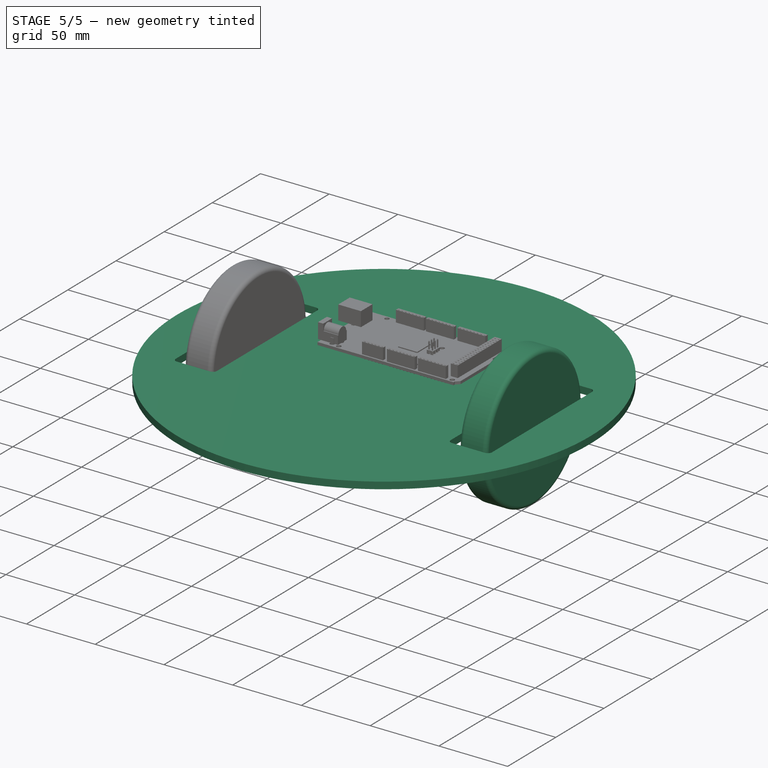
[diagram: stage 5 of 5 — iso view after this stage's code; geometry added in this stage tinted green]
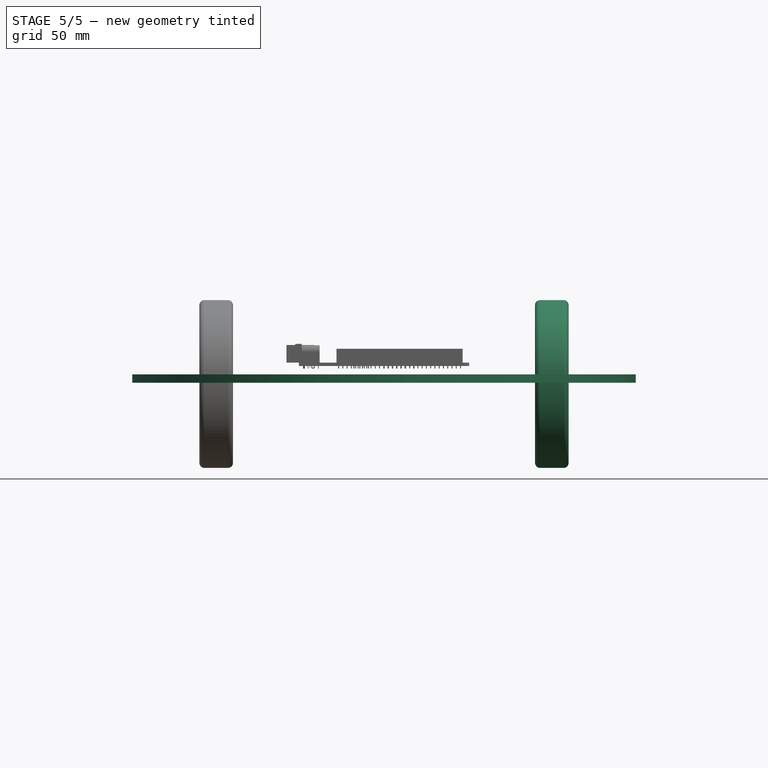
[diagram: stage 5 of 5 — front view after this stage's code; geometry added in this stage tinted green]
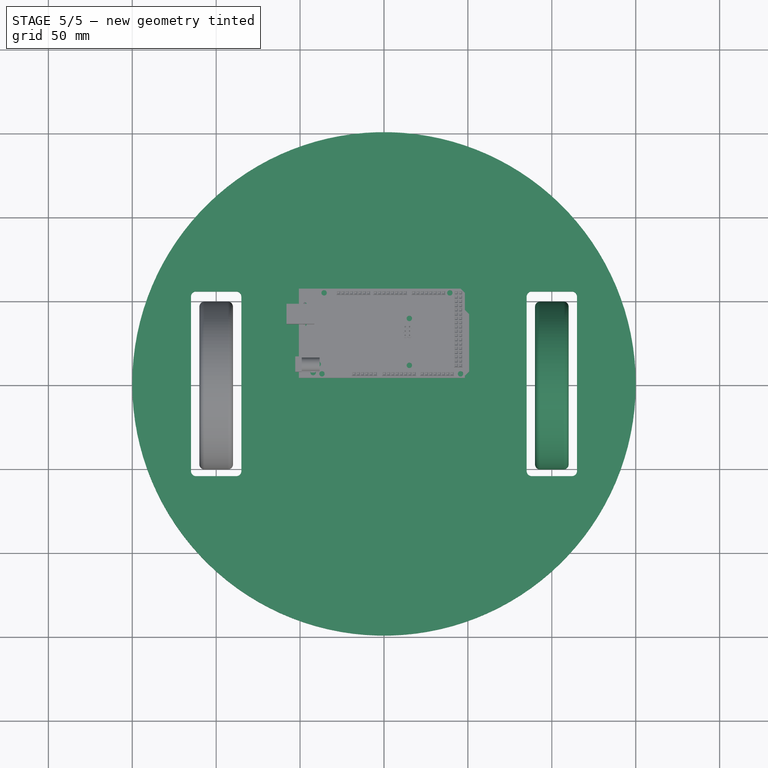
[diagram: stage 5 of 5 — top view after this stage's code; geometry added in this stage tinted green]
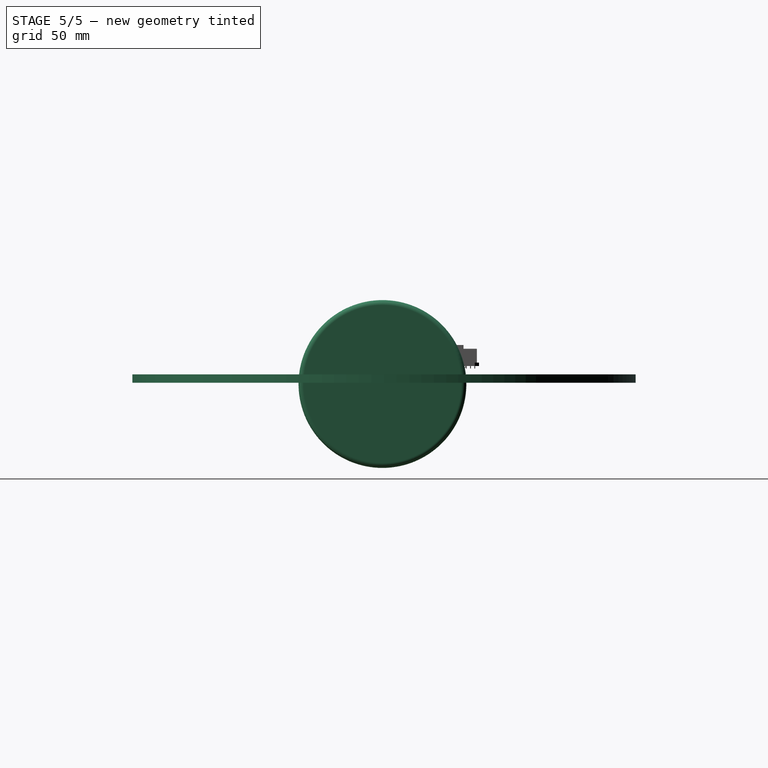
[diagram: stage 5 of 5 — right view after this stage's code; geometry added in this stage tinted green]
FEATURE [Sketcher::SketchObject] Sketch
  sketch-geometry (10):
    g0: Circle CenterX=0 CenterY=0 CenterZ=0 NormalX=0 NormalY=0 NormalZ=1 Radius=150
    g1: LineSegment StartX=-115 StartY=55 StartZ=0 EndX=-85 EndY=55 EndZ=0
    g2: LineSegment StartX=-85 StartY=55 StartZ=0 EndX=-85 EndY=-55 EndZ=0
    g3: LineSegment StartX=-85 StartY=-55 StartZ=0 EndX=-115 EndY=-55 EndZ=0
    g4: LineSegment StartX=-115 StartY=-55 StartZ=0 EndX=-115 EndY=55 EndZ=0
    g5: LineSegment StartX=85 StartY=55 StartZ=0 EndX=115 EndY=55 EndZ=0
    g6: LineSegment StartX=115 StartY=55 StartZ=0 EndX=115 EndY=-55 EndZ=0
    g7: LineSegment StartX=115 StartY=-55 StartZ=0 EndX=85 EndY=-55 EndZ=0
    g8: LineSegment StartX=85 StartY=-55 StartZ=0 EndX=85 EndY=55 EndZ=0
    g9: LineSegment [constr] StartX=100 StartY=193.426 StartZ=0 EndX=100 EndY=-175.004 EndZ=0
  constraints (27):
    c: Coincident(g0,g-1)
    c: Radius(g0) = 150
    c: Coincident(g1,g2)
    c: Coincident(g2,g3)
    c: Coincident(g3,g4)
    c: Coincident(g4,g1)
    c: Horizontal(g1)
    c: Horizontal(g3)
    c: Vertical(g2)
    c: Vertical(g4)
    c: Coincident(g5,g6)
    c: Coincident(g6,g7)
    c: Coincident(g7,g8)
    c: Coincident(g8,g5)
    c: Horizontal(g5)
    c: Horizontal(g7)
    c: Vertical(g6)
    c: Vertical(g8)
    c: Equal(g5,g1)
    c: Symmetric(g1,g5,g-2)
    c: Symmetric(g2,g1,g-1)
    c: Symmetric(g7,g5,g-1)
    c: Vertical(g9)
    c: Symmetric(g5,g5,g9)
    c: Distance(g-1,g9) = 100
    c: DistanceX(g7) = -30
    c: DistanceY(g6) = -110
FEATURE [PartDesign::Pad] Pad  label="Recorte principal"
  Length = 5
  Length2 = 100
  Sketch = -> Sketch
  Type = 0
FEATURE [PartDesign::Fillet] Fillet  label="Wheel Hole Fillet"
  Base = -> Pad [Edge23,Edge11,Edge8,Edge20,Edge5,Edge17,Edge16,Edge4]
  Radius = 3
FEATURE [Sketcher::SketchObject] Sketch001
  Placement = pos=(90,0,0) rot=(0,1,0;1.5708rad)
  sketch-geometry (1):
    g0: Circle CenterX=0.73979 CenterY=-0.924742 CenterZ=0 NormalX=0 NormalY=0 NormalZ=1 Radius=50
  constraints (1):
    c: Radius(g0) = 50
FEATURE [PartDesign::Pad] Pad001
  Length = 20
  Length2 = 100
  Placement = pos=(90,0,0) rot=(0,1,0;1.5708rad)
  Sketch = -> Sketch001
  Type = 0
FEATURE [PartDesign::Fillet] Fillet001
  Base = -> Pad001 [Edge3]
  Placement = pos=(90,0,0) rot=(0,1,0;1.5708rad)
  Radius = 3
FEATURE [PartDesign::Fillet] Fillet002
  Base = -> Fillet001 [Edge3]
  Placement = pos=(90,0,0) rot=(0,1,0;1.5708rad)
  Radius = 3
FEATURE [PartDesign::Fillet] Fillet004
  Base = -> Fillet003 [Edge3]
  Placement = pos=(-110,0,0) rot=(0,1,0;1.5708rad)
  Radius = 3
FEATURE [Sketcher::SketchObject] Sketch003
  Placement = pos=(0,0,5) rot=(0,0,1;0rad)
  Support = -> Fillet [Face5]
  sketch-geometry (5):
    g0: Circle CenterX=-25 CenterY=53.3834 CenterZ=0 NormalX=0 NormalY=0 NormalZ=1 Radius=1.25
    g1: Circle CenterX=25 CenterY=53.3834 CenterZ=0 NormalX=0 NormalY=0 NormalZ=1 Radius=1.25
    g2: Circle CenterX=-25 CenterY=32.3834 CenterZ=0 NormalX=0 NormalY=0 NormalZ=1 Radius=1.25
    g3: Circle CenterX=25 CenterY=32.3834 CenterZ=0 NormalX=0 NormalY=0 NormalZ=1 Radius=1.25
    g4: LineSegment [constr] StartX=-25 StartY=53.3834 StartZ=0 EndX=-25 EndY=32.3834 EndZ=0
  constraints (11):
    c: Symmetric(g1,g0,g-2)
    c: Symmetric(g2,g3,g-2)
    c: Coincident(g4,g0)
    c: Coincident(g4,g2)
    c: Vertical(g4)
    c: DistanceY(g4) = -21
    c: Radius(g0) = 1.25
    c: Equal(g0,g1)
    c: Equal(g0,g3)
    c: Equal(g0,g2)
    c: Distance(g2,g3) = 50
FEATURE [PartDesign::Pocket] Pocket  label="Pltaform Holes"
  Length = 4
  Sketch = -> Sketch003
  Type = 1
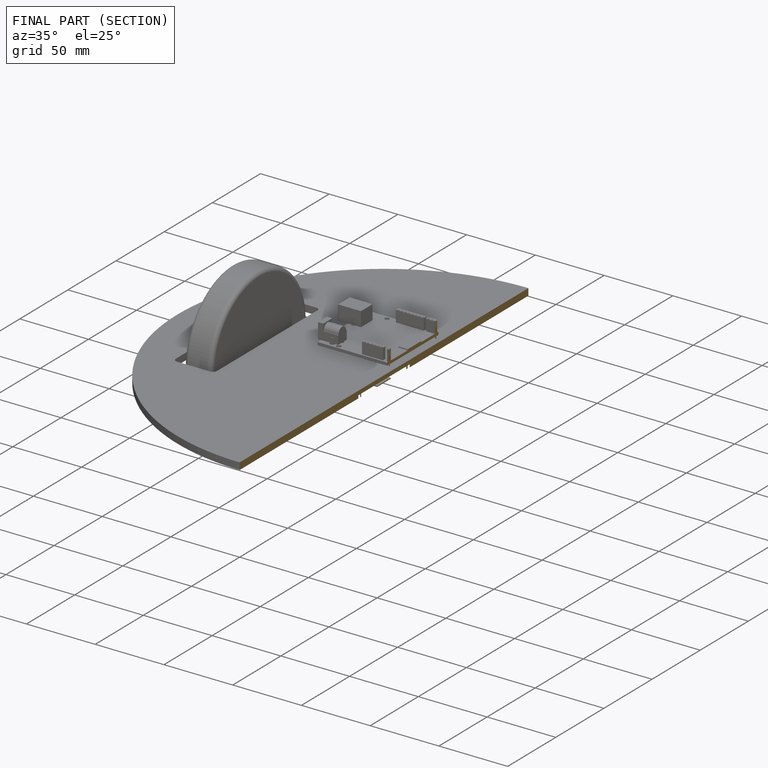
[diagram: finished part — half-section view (interior)]
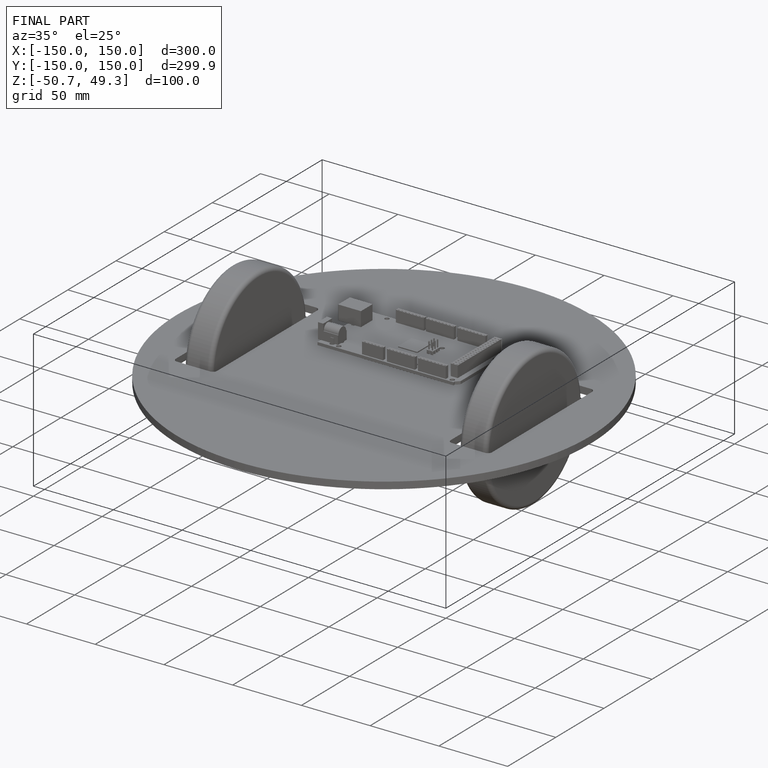
[diagram: finished part — iso view with bounding-box wireframe]
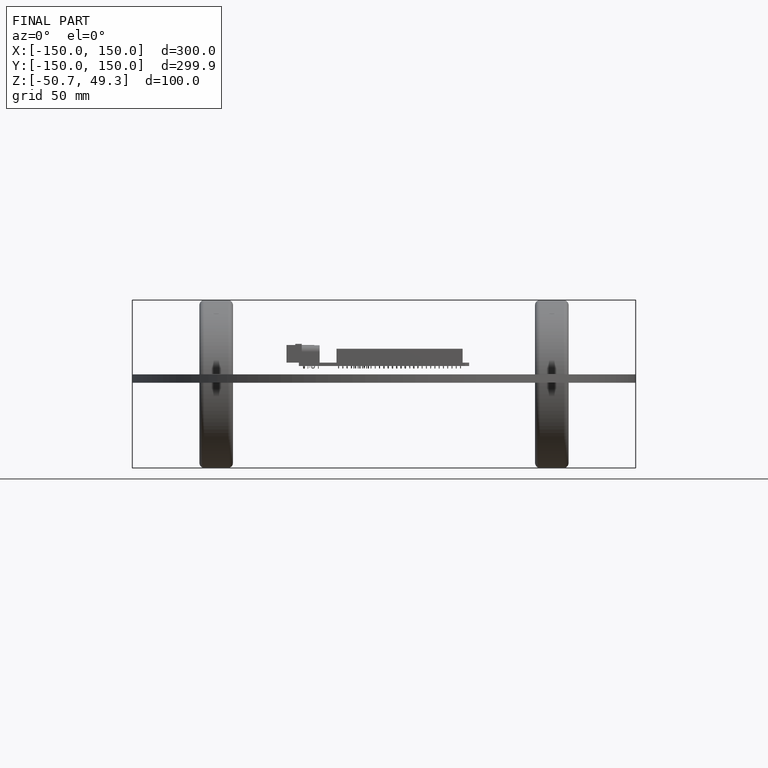
[diagram: finished part — front view with bounding-box wireframe]
